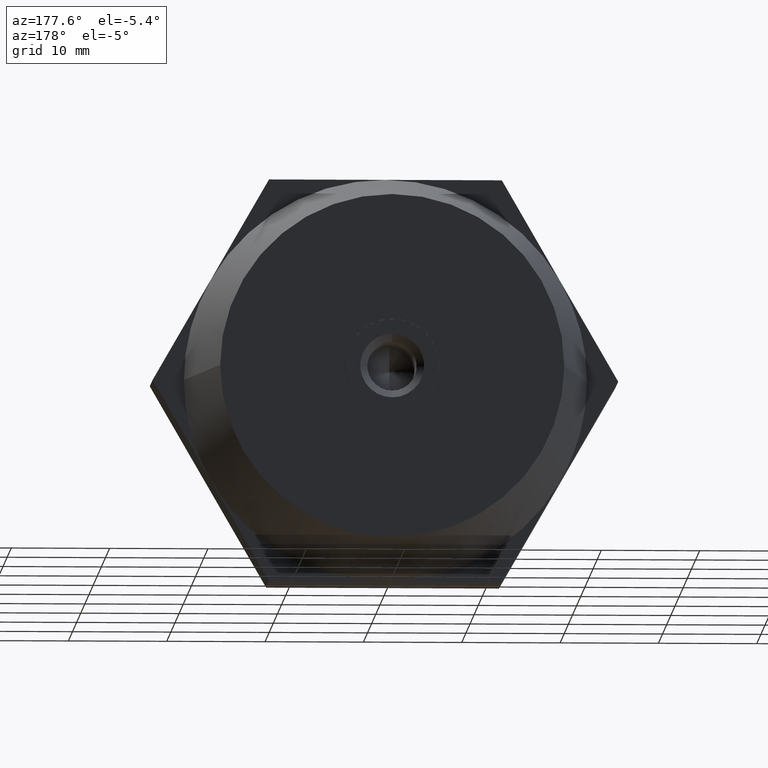
[diagram: clean part render]
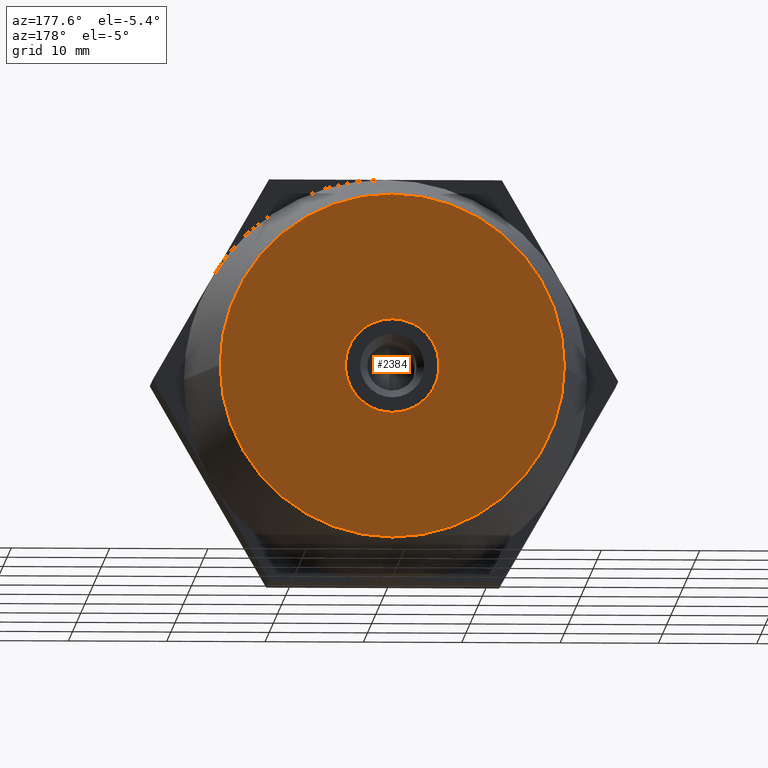
[diagram: same view with one face highlighted and labeled with its STEP entity id]
A machine part, auxiliary view. The second image highlights one B-rep face of the part: STEP entity #2384.
In plain terms, the highlighted planar face has unit normal (-0, 1, 0).
Its self-contained STEP definition (entity closure, byte-faithful):
#15 = VECTOR ( 'NONE', #2014, 1000.000000000000000 ) ;
#46 = CARTESIAN_POINT ( 'NONE',  ( -15.50625000000000000, 20.00000000000000000, 3.453276297590429900 ) ) ;
#54 = EDGE_CURVE ( 'NONE', #3064, #1669, #2138, .T. ) ;
#61 = LINE ( 'NONE', #2621, #295 ) ;
#94 = DIRECTION ( 'NONE',  ( -1.224646799147352000E-016, 1.000000000000000000, 0.0000000000000000000 ) ) ;
#97 = CARTESIAN_POINT ( 'NONE',  ( 17.50000000000000000, 20.00000000000000400, 0.0000000000000000000 ) ) ;
#109 = VECTOR ( 'NONE', #2855, 1000.000000000000000 ) ;
#111 = VERTEX_POINT ( 'NONE', #1693 ) ;
#171 = CARTESIAN_POINT ( 'NONE',  ( -4.762500000000000200, 20.00000000000000000, -0.3087879531330265400 ) ) ;
#194 = CARTESIAN_POINT ( 'NONE',  ( -5.844626848930769500E-016, 20.00000000000000000, 0.0000000000000000000 ) ) ;
#214 = DIRECTION ( 'NONE',  ( 1.224646799147352000E-016, -1.000000000000000000, -0.0000000000000000000 ) ) ;
#295 = VECTOR ( 'NONE', #1722, 1000.000000000000000 ) ;
#316 = VERTEX_POINT ( 'NONE', #3310 ) ;
#335 = CARTESIAN_POINT ( 'NONE',  ( -5.844626848930769500E-016, 20.00000000000000000, 0.0000000000000000000 ) ) ;
#372 = PLANE ( 'NONE',  #3217 ) ;
#388 = EDGE_CURVE ( 'NONE', #2800, #3652, #3249, .T. ) ;
#396 = EDGE_CURVE ( 'NONE', #3652, #675, #1302, .T. ) ;
#471 = VECTOR ( 'NONE', #1239, 1000.000000000000000 ) ;
#474 = CIRCLE ( 'NONE', #1506, 4.772500000000000000 ) ;
#534 = CIRCLE ( 'NONE', #3638, 17.50000000000000000 ) ;
#590 = VERTEX_POINT ( 'NONE', #747 ) ;
#621 = CARTESIAN_POINT ( 'NONE',  ( -5.844626848930769500E-016, 20.00000000000000000, 0.0000000000000000000 ) ) ;
#636 = DIRECTION ( 'NONE',  ( -1.224646799147352000E-016, 1.000000000000000000, 0.0000000000000000000 ) ) ;
#673 = ORIENTED_EDGE ( 'NONE', *, *, #3524, .T. ) ;
#675 = VERTEX_POINT ( 'NONE', #1081 ) ;
#695 = VERTEX_POINT ( 'NONE', #3498 ) ;
#709 = DIRECTION ( 'NONE',  ( -1.000000000000000000, -1.224646799147352000E-016, 0.0000000000000000000 ) ) ;
#710 = AXIS2_PLACEMENT_3D ( 'NONE', #1244, #2414, #3319 ) ;
#719 = CARTESIAN_POINT ( 'NONE',  ( -5.844626848930769500E-016, 20.00000000000000000, 0.0000000000000000000 ) ) ;
#737 = VERTEX_POINT ( 'NONE', #171 ) ;
#747 = CARTESIAN_POINT ( 'NONE',  ( -2.648668211795889500, 20.00000000000000000, 3.970052008956864500 ) ) ;
#755 = DIRECTION ( 'NONE',  ( -1.000000000000000000, 0.0000000000000000000, 0.0000000000000000000 ) ) ;
#827 = VERTEX_POINT ( 'NONE', #2911 ) ;
#902 = CARTESIAN_POINT ( 'NONE',  ( 2.648668211795689700, 20.00000000000000000, -3.970052008956994600 ) ) ;
#903 = DIRECTION ( 'NONE',  ( 0.8660254037844383700, 1.060575238724906500E-016, -0.5000000000000003300 ) ) ;
#917 = ORIENTED_EDGE ( 'NONE', *, *, #2092, .T. ) ;
#931 = CARTESIAN_POINT ( 'NONE',  ( -17.50000000000000000, 19.99999999999999600, 2.326828918379972200E-015 ) ) ;
#943 = CARTESIAN_POINT ( 'NONE',  ( -2.624579619658250000E-031, 20.00000000000000000, 0.0000000000000000000 ) ) ;
#956 = ORIENTED_EDGE ( 'NONE', *, *, #3499, .T. ) ;
#1017 = CARTESIAN_POINT ( 'NONE',  ( -17.50000000000000000, 20.00000000000000000, 0.0000000000000000000 ) ) ;
#1081 = CARTESIAN_POINT ( 'NONE',  ( 4.762500000000000200, 20.00000000000000000, 0.3087879531336090200 ) ) ;
#1085 = CARTESIAN_POINT ( 'NONE',  ( -10.74375000000000000, 20.00000000000000000, 11.70216826863721900 ) ) ;
#1136 = LINE ( 'NONE', #3201, #3321 ) ;
#1143 = CARTESIAN_POINT ( 'NONE',  ( -2.113831788204310100, 20.00000000000000000, -4.278839962089895400 ) ) ;
#1191 = ORIENTED_EDGE ( 'NONE', *, *, #388, .T. ) ;
#1200 = DIRECTION ( 'NONE',  ( -1.000000000000000000, 0.0000000000000000000, -8.881784197001252300E-016 ) ) ;
#1234 = ORIENTED_EDGE ( 'NONE', *, *, #2120, .T. ) ;
#1239 = DIRECTION ( 'NONE',  ( 0.0000000000000000000, 0.0000000000000000000, 1.000000000000000000 ) ) ;
#1244 = CARTESIAN_POINT ( 'NONE',  ( -5.844626848930769500E-016, 20.00000000000000000, 0.0000000000000000000 ) ) ;
#1247 = VERTEX_POINT ( 'NONE', #97 ) ;
#1264 = ORIENTED_EDGE ( 'NONE', *, *, #2451, .T. ) ;
#1286 = EDGE_CURVE ( 'NONE', #3221, #316, #2982, .T. ) ;
#1302 = LINE ( 'NONE', #2971, #471 ) ;
#1319 = CARTESIAN_POINT ( 'NONE',  ( -5.844626848930769500E-016, 20.00000000000000000, 0.0000000000000000000 ) ) ;
#1360 = ORIENTED_EDGE ( 'NONE', *, *, #396, .T. ) ;
#1397 = VECTOR ( 'NONE', #903, 1000.000000000000100 ) ;
#1437 = DIRECTION ( 'NONE',  ( -1.224646799147352000E-016, 1.000000000000000000, 0.0000000000000000000 ) ) ;
#1506 = AXIS2_PLACEMENT_3D ( 'NONE', #3423, #214, #755 ) ;
#1602 = DIRECTION ( 'NONE',  ( 1.224646799147352000E-016, -1.000000000000000000, -0.0000000000000000000 ) ) ;
#1627 = VERTEX_POINT ( 'NONE', #2348 ) ;
#1669 = VERTEX_POINT ( 'NONE', #2626 ) ;
#1693 = CARTESIAN_POINT ( 'NONE',  ( -4.762500000000000200, 20.00000000000000000, 0.3087879531330144900 ) ) ;
#1717 = LINE ( 'NONE', #2587, #109 ) ;
#1722 = DIRECTION ( 'NONE',  ( 0.8660254037844387100, 1.060575238724905700E-016, 0.4999999999999998900 ) ) ;
#1785 = AXIS2_PLACEMENT_3D ( 'NONE', #1319, #3680, #2234 ) ;
#1786 = DIRECTION ( 'NONE',  ( 1.224646799147352000E-016, -1.000000000000000000, -0.0000000000000000000 ) ) ;
#1854 = DIRECTION ( 'NONE',  ( 1.224646799147352000E-016, -1.000000000000000000, -0.0000000000000000000 ) ) ;
#1871 = AXIS2_PLACEMENT_3D ( 'NONE', #719, #1602, #3707 ) ;
#1915 = CIRCLE ( 'NONE', #710, 4.772500000000000000 ) ;
#1973 = DIRECTION ( 'NONE',  ( -1.000000000000000000, 0.0000000000000000000, 0.0000000000000000000 ) ) ;
#1974 = DIRECTION ( 'NONE',  ( -1.000000000000000000, -1.982541115402065400E-016, 0.0000000000000000000 ) ) ;
#1997 = ORIENTED_EDGE ( 'NONE', *, *, #54, .T. ) ;
#2010 = DIRECTION ( 'NONE',  ( 1.224646799147352000E-016, -1.000000000000000000, -0.0000000000000000000 ) ) ;
#2014 = DIRECTION ( 'NONE',  ( -0.8660254037844387100, -1.060575238724907700E-016, 0.4999999999999998900 ) ) ;
#2037 = DIRECTION ( 'NONE',  ( -0.8660254037844387100, -1.060575238724905700E-016, -0.4999999999999998900 ) ) ;
#2051 = ORIENTED_EDGE ( 'NONE', *, *, #1286, .T. ) ;
#2052 = CIRCLE ( 'NONE', #2612, 17.50000000000000000 ) ;
#2088 = EDGE_CURVE ( 'NONE', #111, #737, #1717, .T. ) ;
#2092 = EDGE_CURVE ( 'NONE', #827, #3221, #3301, .T. ) ;
#2120 = EDGE_CURVE ( 'NONE', #1627, #2800, #61, .T. ) ;
#2123 = DIRECTION ( 'NONE',  ( -1.000000000000000000, 0.0000000000000000000, 0.0000000000000000000 ) ) ;
#2138 = CIRCLE ( 'NONE', #2717, 4.772500000000000000 ) ;
#2149 = LINE ( 'NONE', #46, #1397 ) ;
#2176 = EDGE_CURVE ( 'NONE', #3823, #1247, #534, .T. ) ;
#2218 = ORIENTED_EDGE ( 'NONE', *, *, #2176, .T. ) ;
#2230 = ORIENTED_EDGE ( 'NONE', *, *, #2337, .T. ) ;
#2234 = DIRECTION ( 'NONE',  ( -1.000000000000000000, 0.0000000000000000000, -1.776356839400250500E-015 ) ) ;
#2243 = CIRCLE ( 'NONE', #2787, 4.772500000000000000 ) ;
#2249 = ORIENTED_EDGE ( 'NONE', *, *, #2088, .T. ) ;
#2264 = AXIS2_PLACEMENT_3D ( 'NONE', #621, #1786, #1200 ) ;
#2275 = CARTESIAN_POINT ( 'NONE',  ( 2.113831788203810000, 20.00000000000000000, 4.278839962090139600 ) ) ;
#2337 = EDGE_CURVE ( 'NONE', #1247, #3823, #2052, .T. ) ;
#2348 = CARTESIAN_POINT ( 'NONE',  ( 2.113831788204359800, 20.00000000000000000, -4.278839962089865200 ) ) ;
#2355 = EDGE_CURVE ( 'NONE', #695, #3064, #2149, .T. ) ;
#2384 = ADVANCED_FACE ( 'NONE', ( #3673, #3770 ), #372, .T. ) ;
#2414 = DIRECTION ( 'NONE',  ( 1.224646799147352000E-016, -1.000000000000000000, -0.0000000000000000000 ) ) ;
#2440 = CARTESIAN_POINT ( 'NONE',  ( 4.762500000000000200, 20.00000000000000000, -0.3087879531335800400 ) ) ;
#2451 = EDGE_CURVE ( 'NONE', #590, #111, #474, .T. ) ;
#2587 = CARTESIAN_POINT ( 'NONE',  ( -4.762500000000000200, 20.00000000000000000, 1.607200604843199800E-014 ) ) ;
#2612 = AXIS2_PLACEMENT_3D ( 'NONE', #943, #636, #3026 ) ;
#2621 = CARTESIAN_POINT ( 'NONE',  ( -10.74375000000000000, 20.00000000000000000, -11.70216826863728000 ) ) ;
#2626 = CARTESIAN_POINT ( 'NONE',  ( -1.348150961071065100E-030, 20.00000000000000000, -4.772500000000000000 ) ) ;
#2717 = AXIS2_PLACEMENT_3D ( 'NONE', #194, #2010, #1973 ) ;
#2787 = AXIS2_PLACEMENT_3D ( 'NONE', #335, #1854, #2123 ) ;
#2800 = VERTEX_POINT ( 'NONE', #902 ) ;
#2855 = DIRECTION ( 'NONE',  ( 1.261786539621752000E-015, 1.545242846954995000E-031, -1.000000000000000000 ) ) ;
#2891 = CARTESIAN_POINT ( 'NONE',  ( -2.624579619658250000E-031, 20.00000000000000000, 0.0000000000000000000 ) ) ;
#2911 = CARTESIAN_POINT ( 'NONE',  ( 2.648668211796189700, 20.00000000000000000, 3.970052008956665100 ) ) ;
#2971 = CARTESIAN_POINT ( 'NONE',  ( 4.762500000000000200, 20.00000000000000000, 0.0000000000000000000 ) ) ;
#2982 = CIRCLE ( 'NONE', #1785, 4.772500000000000000 ) ;
#3026 = DIRECTION ( 'NONE',  ( -1.000000000000000000, -1.982541115402065400E-016, 0.0000000000000000000 ) ) ;
#3064 = VERTEX_POINT ( 'NONE', #1143 ) ;
#3075 = EDGE_CURVE ( 'NONE', #316, #590, #1136, .T. ) ;
#3114 = EDGE_LOOP ( 'NONE', ( #2230, #2218 ) ) ;
#3155 = ORIENTED_EDGE ( 'NONE', *, *, #3549, .T. ) ;
#3201 = CARTESIAN_POINT ( 'NONE',  ( -15.50625000000000000, 20.00000000000000000, -3.453276297590414800 ) ) ;
#3217 = AXIS2_PLACEMENT_3D ( 'NONE', #1017, #94, #709 ) ;
#3221 = VERTEX_POINT ( 'NONE', #2275 ) ;
#3249 = CIRCLE ( 'NONE', #2264, 4.772500000000000000 ) ;
#3301 = LINE ( 'NONE', #1085, #15 ) ;
#3310 = CARTESIAN_POINT ( 'NONE',  ( -2.113831788204140000, 20.00000000000000000, 4.278839962089975300 ) ) ;
#3319 = DIRECTION ( 'NONE',  ( -1.000000000000000000, 0.0000000000000000000, 0.0000000000000000000 ) ) ;
#3321 = VECTOR ( 'NONE', #2037, 1000.000000000000000 ) ;
#3423 = CARTESIAN_POINT ( 'NONE',  ( -5.844626848930769500E-016, 20.00000000000000000, 0.0000000000000000000 ) ) ;
#3448 = CIRCLE ( 'NONE', #1871, 4.772500000000000000 ) ;
#3492 = EDGE_LOOP ( 'NONE', ( #1234, #1191, #1360, #956, #917, #2051, #3545, #1264, #2249, #3155, #3725, #1997, #673 ) ) ;
#3498 = CARTESIAN_POINT ( 'NONE',  ( -2.648668211795755000, 20.00000000000000000, -3.970052008956955100 ) ) ;
#3499 = EDGE_CURVE ( 'NONE', #675, #827, #3448, .T. ) ;
#3524 = EDGE_CURVE ( 'NONE', #1669, #1627, #1915, .T. ) ;
#3545 = ORIENTED_EDGE ( 'NONE', *, *, #3075, .T. ) ;
#3549 = EDGE_CURVE ( 'NONE', #737, #695, #2243, .T. ) ;
#3638 = AXIS2_PLACEMENT_3D ( 'NONE', #2891, #1437, #1974 ) ;
#3652 = VERTEX_POINT ( 'NONE', #2440 ) ;
#3673 = FACE_OUTER_BOUND ( 'NONE', #3114, .T. ) ;
#3680 = DIRECTION ( 'NONE',  ( 1.224646799147352000E-016, -1.000000000000000000, -0.0000000000000000000 ) ) ;
#3707 = DIRECTION ( 'NONE',  ( -1.000000000000000000, 0.0000000000000000000, 1.776356839400250500E-015 ) ) ;
#3725 = ORIENTED_EDGE ( 'NONE', *, *, #2355, .T. ) ;
#3770 = FACE_BOUND ( 'NONE', #3492, .T. ) ;
#3823 = VERTEX_POINT ( 'NONE', #931 ) ;